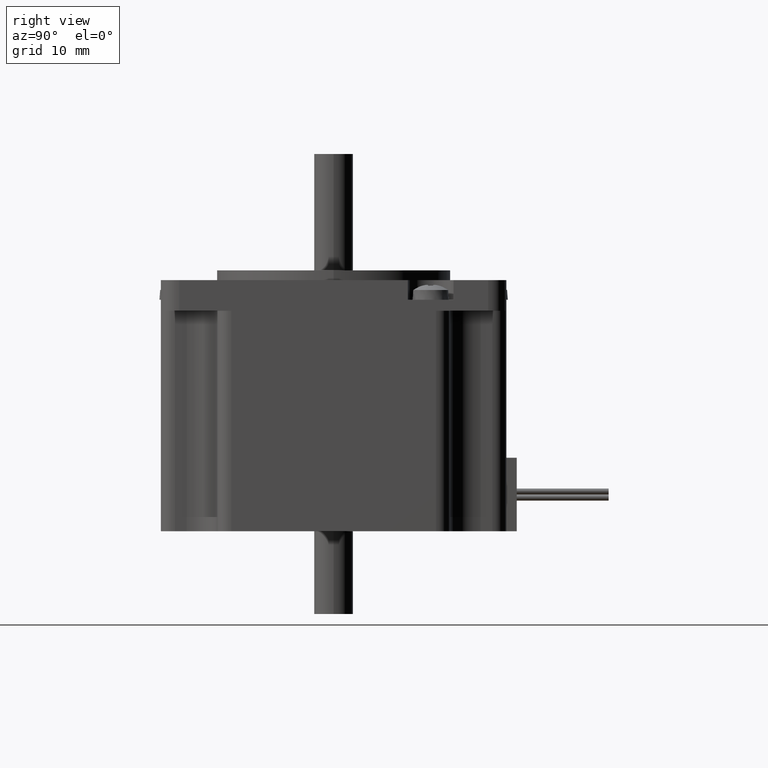
[diagram: clean part render]
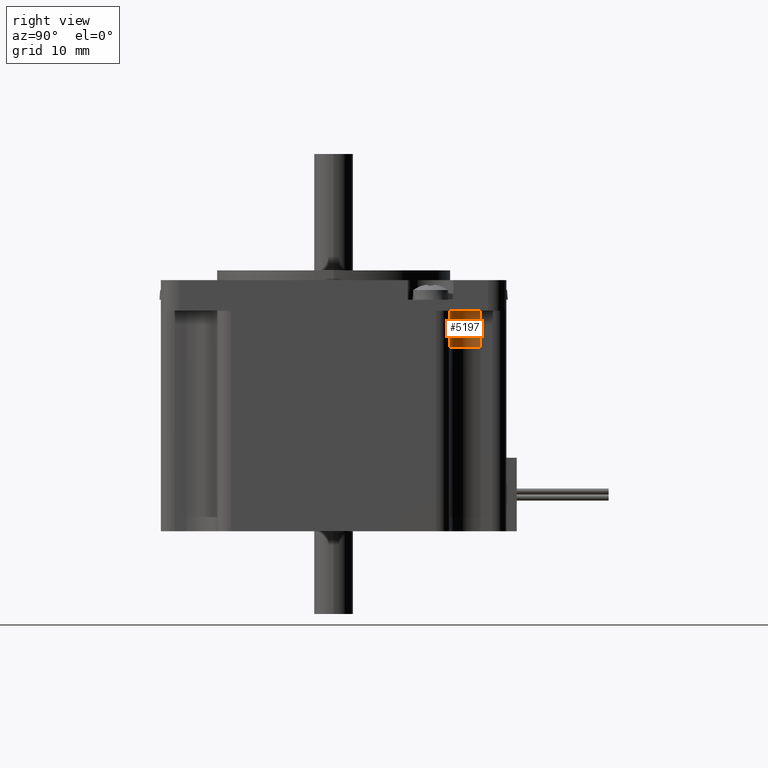
[diagram: same view with one face highlighted and labeled with its STEP entity id]
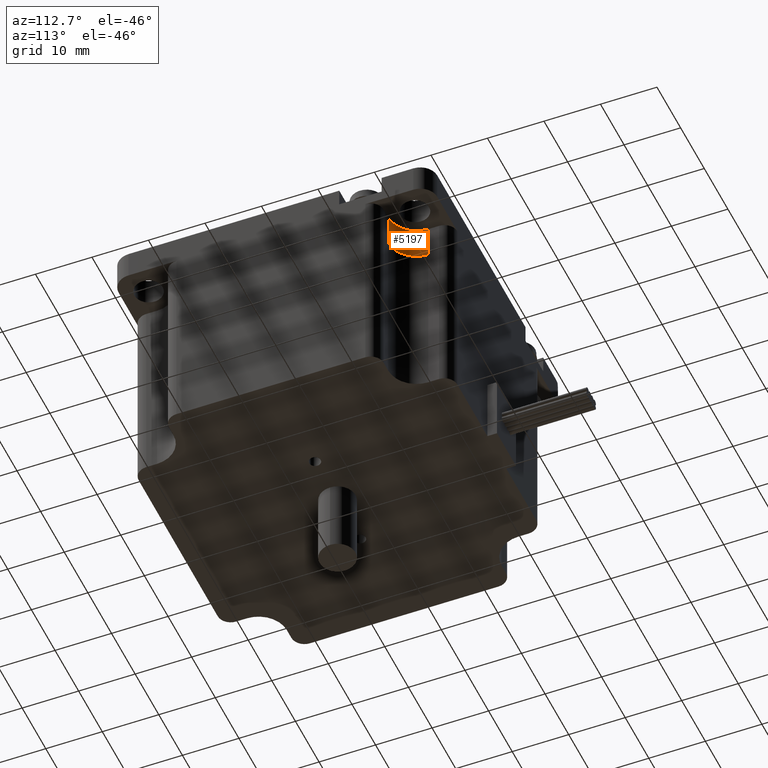
[diagram: same view with one face highlighted and labeled with its STEP entity id]
A machine part, right view. The second image highlights one B-rep face of the part: STEP entity #5197.
A second angle (auxiliary view) of the same face is appended — the face is thin or edge-on in the first view.
In plain terms, the highlighted cylindrical surface (edge-blend (fillet) strip) has radius 5 mm, axis along (0, 0, 1).
Its self-contained STEP definition (entity closure, byte-faithful):
#250=LINE('',#8020,#616);
#269=LINE('',#8083,#635);
#616=VECTOR('',#6355,10.);
#635=VECTOR('',#6434,10.);
#1185=FACE_OUTER_BOUND('',#1526,.T.);
#1526=EDGE_LOOP('',(#3677,#3678,#3679,#3680));
#1881=CIRCLE('',#5543,5.);
#1902=CIRCLE('',#5590,5.);
#2224=VERTEX_POINT('',#7955);
#2225=VERTEX_POINT('',#7957);
#2247=VERTEX_POINT('',#8019);
#2261=VERTEX_POINT('',#8081);
#2748=EDGE_CURVE('',#2224,#2225,#1881,.T.);
#2780=EDGE_CURVE('',#2225,#2247,#250,.T.);
#2810=EDGE_CURVE('',#2247,#2261,#1902,.T.);
#2811=EDGE_CURVE('',#2224,#2261,#269,.T.);
#3677=ORIENTED_EDGE('',*,*,#2810,.F.);
#3678=ORIENTED_EDGE('',*,*,#2780,.F.);
#3679=ORIENTED_EDGE('',*,*,#2748,.F.);
#3680=ORIENTED_EDGE('',*,*,#2811,.T.);
#4950=CYLINDRICAL_SURFACE('',#5589,5.);
#5197=ADVANCED_FACE('',(#1185),#4950,.F.);
#5543=AXIS2_PLACEMENT_3D('',#7958,#6297,#6298);
#5589=AXIS2_PLACEMENT_3D('',#8080,#6430,#6431);
#5590=AXIS2_PLACEMENT_3D('',#8082,#6432,#6433);
#6297=DIRECTION('center_axis',(0.,0.,1.));
#6298=DIRECTION('ref_axis',(0.,1.,0.));
#6355=DIRECTION('',(0.,0.,1.));
#6430=DIRECTION('center_axis',(0.,0.,1.));
#6431=DIRECTION('ref_axis',(0.,1.,0.));
#6432=DIRECTION('center_axis',(0.,0.,-1.));
#6433=DIRECTION('ref_axis',(0.,1.,0.));
#6434=DIRECTION('',(0.,0.,1.));
#7955=CARTESIAN_POINT('',(19.,24.,-6.29999999493361));
#7957=CARTESIAN_POINT('',(24.,19.,-6.29999999493361));
#7958=CARTESIAN_POINT('Origin',(24.,24.,-6.29999999493361));
#8019=CARTESIAN_POINT('',(24.,19.,-0.299999994933604));
#8020=CARTESIAN_POINT('',(24.,19.,-6.29999999493361));
#8080=CARTESIAN_POINT('Origin',(24.,24.,-6.29999999493361));
#8081=CARTESIAN_POINT('',(19.,24.,-0.299999994933604));
#8082=CARTESIAN_POINT('Origin',(24.,24.,-0.299999994933604));
#8083=CARTESIAN_POINT('',(19.,24.,-6.29999999493361));